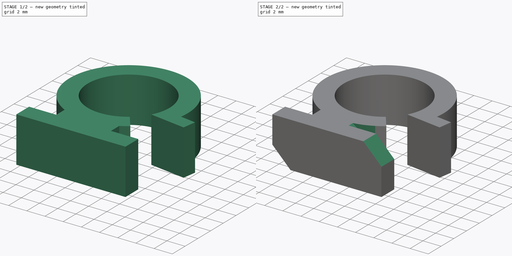
[diagram: build sequence overview — one tinted view per stage of 2, left to right]
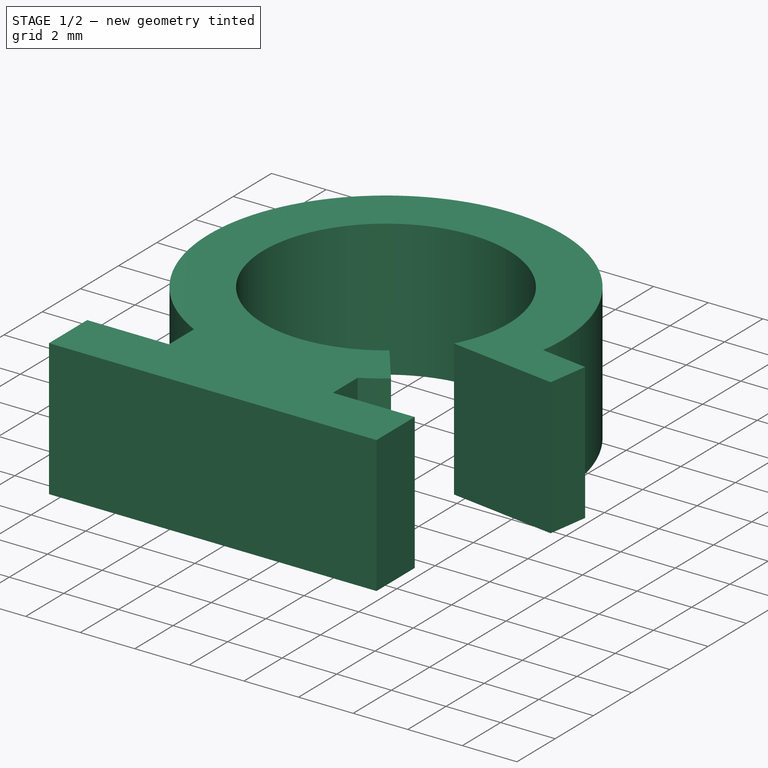
[diagram: stage 1 of 2 — iso view after this stage's code; geometry added in this stage tinted green]
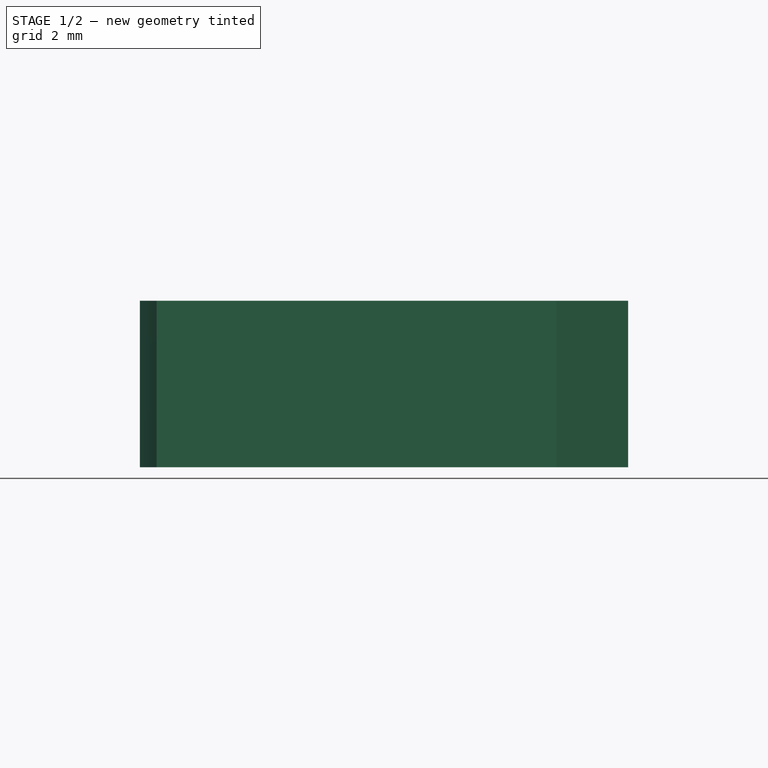
[diagram: stage 1 of 2 — front view after this stage's code; geometry added in this stage tinted green]
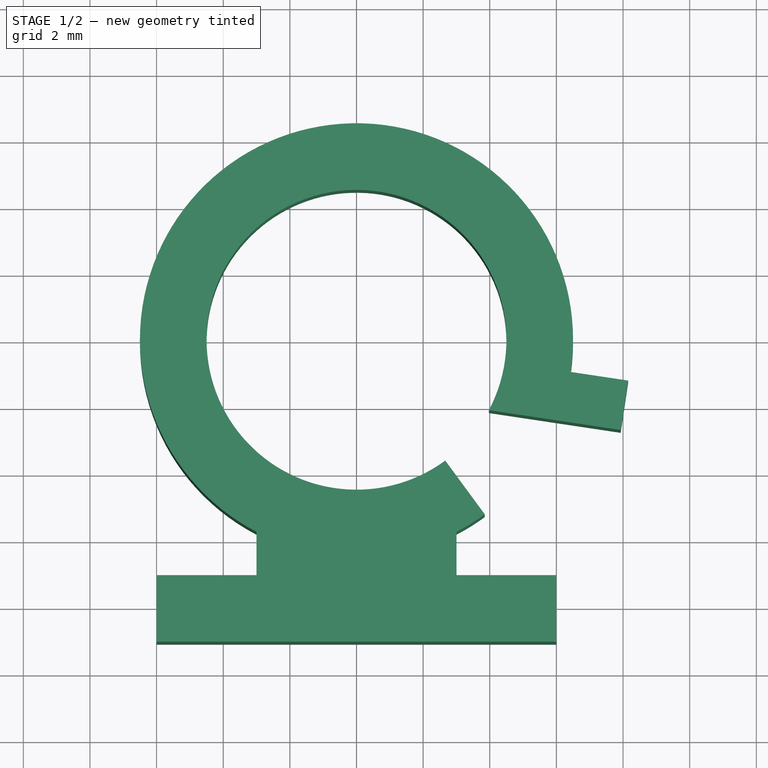
[diagram: stage 1 of 2 — top view after this stage's code; geometry added in this stage tinted green]
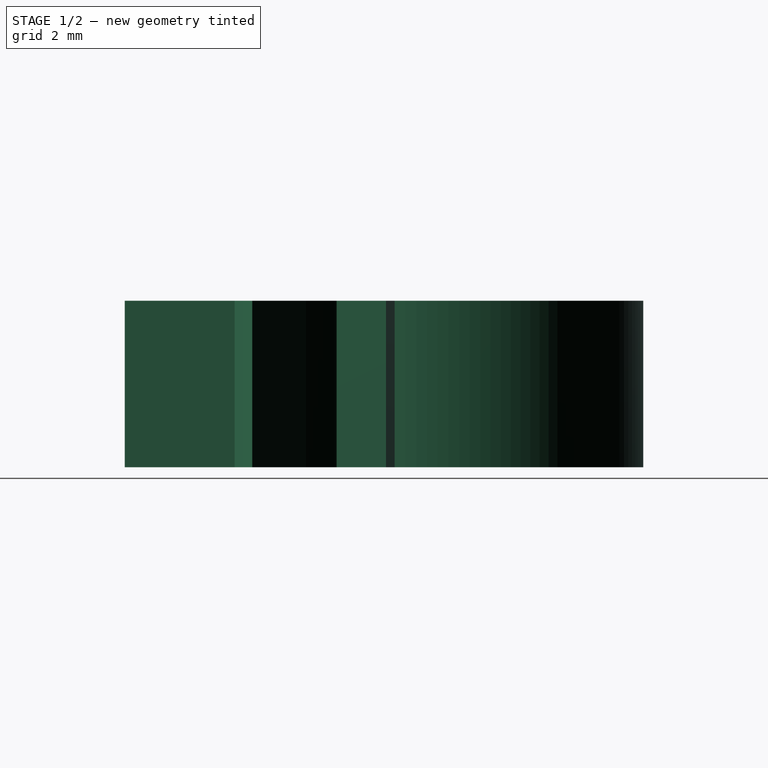
[diagram: stage 1 of 2 — right view after this stage's code; geometry added in this stage tinted green]
FCSTD DOCUMENT
Label: cable-guide
objects: Sketcher::SketchObject×1, PartDesign::Pad×1, PartDesign::Chamfer×1
note: 4 computed .brp shape members not serialized (recipe doc carries the construction recipe); baked Part::Feature solids carry a one-line shape summary decoded from their .brp

FEATURE [Sketcher::SketchObject] Sketch
  sketch-geometry (14):
    g0: ArcOfCircle CenterX=0 CenterY=0 CenterZ=0 NormalX=0 NormalY=0 NormalZ=1 Radius=6.5 StartAngle=6.13414 EndAngle=10.5158
    g1: LineSegment StartX=-3 StartY=-5.76628 StartZ=0 EndX=-3 EndY=-7.06628 EndZ=0
    g2: LineSegment StartX=-3 StartY=-7.06628 StartZ=0 EndX=-6 EndY=-7.06628 EndZ=0
    g3: LineSegment StartX=-6 StartY=-7.06628 StartZ=0 EndX=-6 EndY=-9.06628 EndZ=0
    g4: LineSegment StartX=-6 StartY=-9.06628 StartZ=0 EndX=6 EndY=-9.06628 EndZ=0
    g5: LineSegment StartX=6 StartY=-9.06628 StartZ=0 EndX=6 EndY=-7.06628 EndZ=0
    g6: LineSegment StartX=6 StartY=-7.06628 StartZ=0 EndX=3 EndY=-7.06628 EndZ=0
    g7: LineSegment StartX=3 StartY=-7.06628 StartZ=0 EndX=3 EndY=-5.76628 EndZ=0
    g8: ArcOfCircle CenterX=0 CenterY=0 CenterZ=0 NormalX=0 NormalY=0 NormalZ=1 Radius=4.5 StartAngle=5.7943 EndAngle=11.6293
    g9: ArcOfCircle CenterX=0 CenterY=0 CenterZ=0 NormalX=0 NormalY=0 NormalZ=1 Radius=6.5 StartAngle=5.19212 EndAngle=5.34612
    g10: LineSegment StartX=3.84899 StartY=-5.23787 StartZ=0 EndX=2.66468 EndY=-3.62622 EndZ=0
    g11: LineSegment StartX=3.97286 StartY=-2.11338 StartZ=0 EndX=7.92851 EndY=-2.70736 EndZ=0
    g12: LineSegment StartX=7.92851 StartY=-2.70736 StartZ=0 EndX=8.15126 EndY=-1.22399 EndZ=0
    g13: LineSegment StartX=8.15126 StartY=-1.22399 StartZ=0 EndX=6.42794 EndY=-0.965218 EndZ=0
  constraints (42):
    c: Coincident(g0,g-1)
    c: Coincident(g1,g2)
    c: Coincident(g2,g3)
    c: Coincident(g3,g4)
    c: Coincident(g4,g5)
    c: Coincident(g5,g6)
    c: Coincident(g6,g7)
    c: Coincident(g0,g1)
    c: Vertical(g1)
    c: Vertical(g7)
    c: Distance(g1,g6) = 6
    c: Distance(g7,g6) = 1.3
    c: Horizontal(g2)
    c: Horizontal(g6)
    c: Equal(g1,g7)
    c: Equal(g3,g5)
    c: Vertical(g3)
    c: Vertical(g5)
    c: Distance(g4) = 12
    c: Symmetric(g2,g5,g-2)
    c: DistanceY(g3) = -2
    c: Radius(g0) = 6.5
    c: Radius(g8) = 4.5
    c: Coincident(g8,g-1)
    c: Distance(g2,g1) = 3
    c: Perpendicular(g8,g10)
    c: Coincident(g10,g8)
    c: Coincident(g10,g9)
    c: Coincident(g7,g9)
    c: Distance(g8,g8) = 2
    c: Distance(g7,g9) = 1
    c: Perpendicular(g9,g10)
    c: Equal(g9,g0)
    c: Coincident(g12,g13)
    c: Coincident(g13,g0)
    c: Coincident(g11,g8)
    c: Coincident(g11,g12)
    c: Parallel(g11,g13)
    c: Perpendicular(g12,g11)
    c: Distance(g11) = 4
    c: Perpendicular(g0,g13)
    c: Distance(g12) = 1.5
FEATURE [PartDesign::Pad] Pad
  Length = 5
  Length2 = 100
  Sketch = -> Sketch
  Type = 0
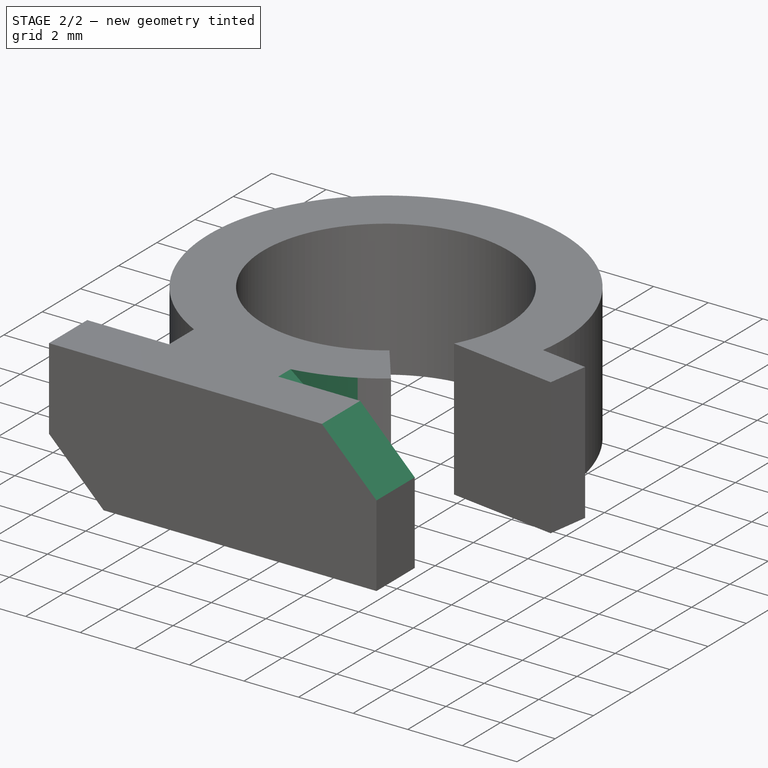
[diagram: stage 2 of 2 — iso view after this stage's code; geometry added in this stage tinted green]
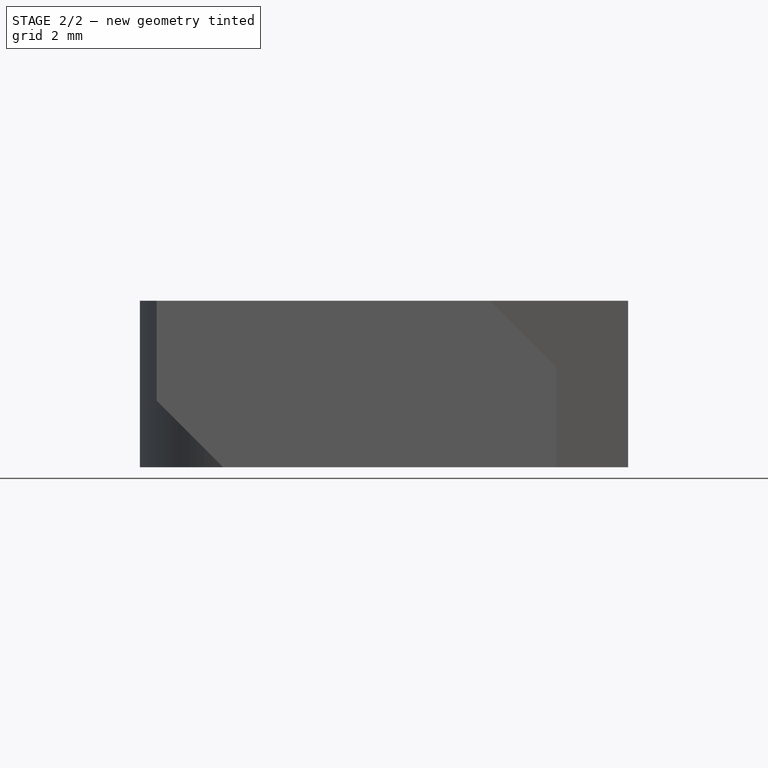
[diagram: stage 2 of 2 — front view after this stage's code; geometry added in this stage tinted green]
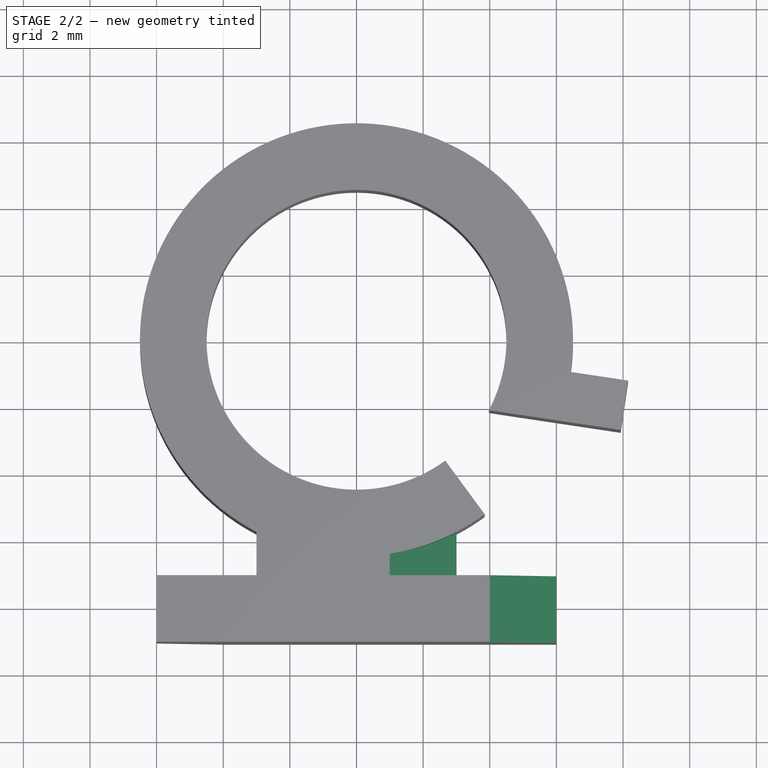
[diagram: stage 2 of 2 — top view after this stage's code; geometry added in this stage tinted green]
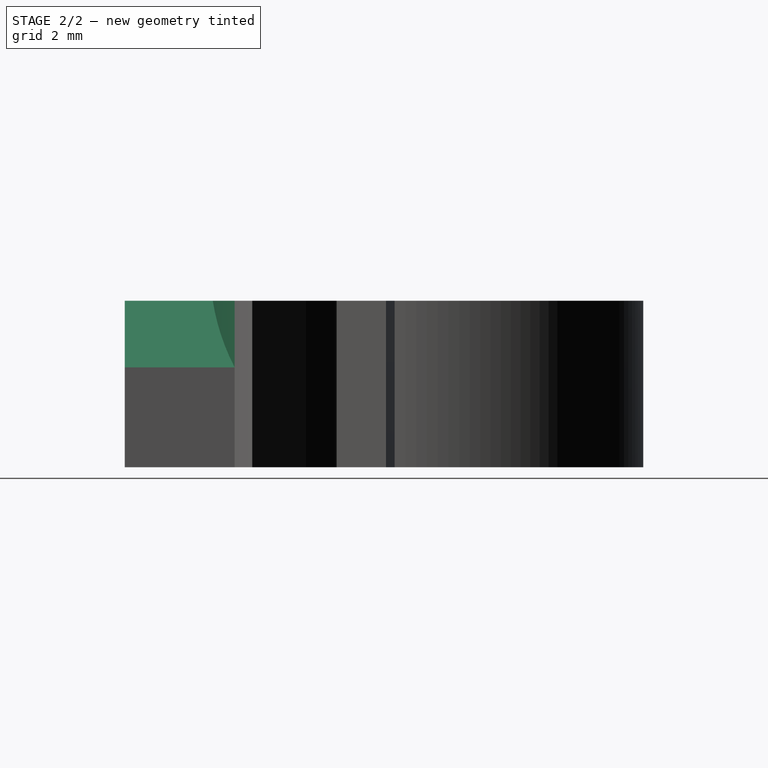
[diagram: stage 2 of 2 — right view after this stage's code; geometry added in this stage tinted green]
FEATURE [PartDesign::Chamfer] Chamfer
  Base = -> Pad [Edge16,Edge10,Edge27,Edge21]
  Size = 2
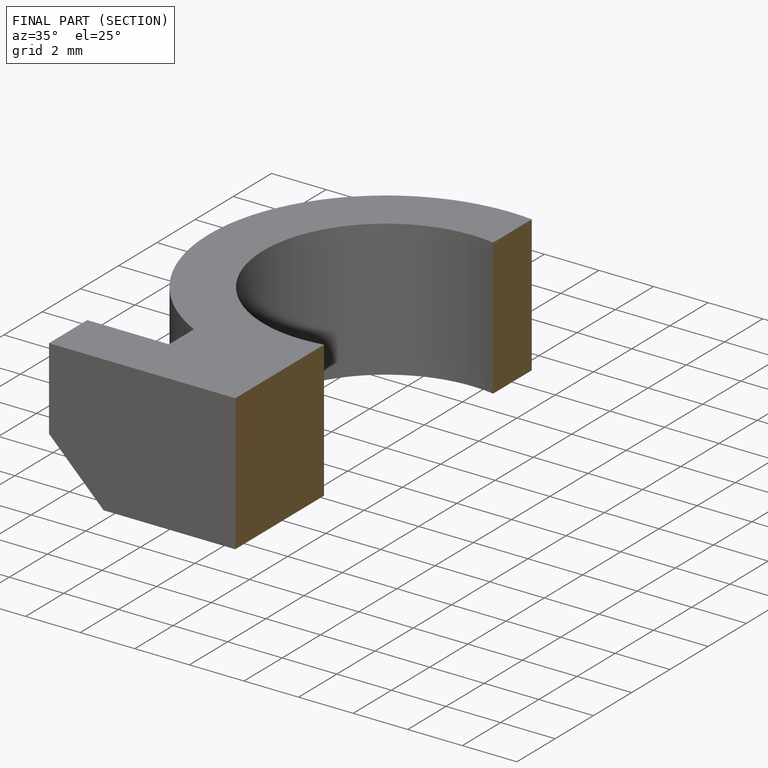
[diagram: finished part — half-section view (interior)]
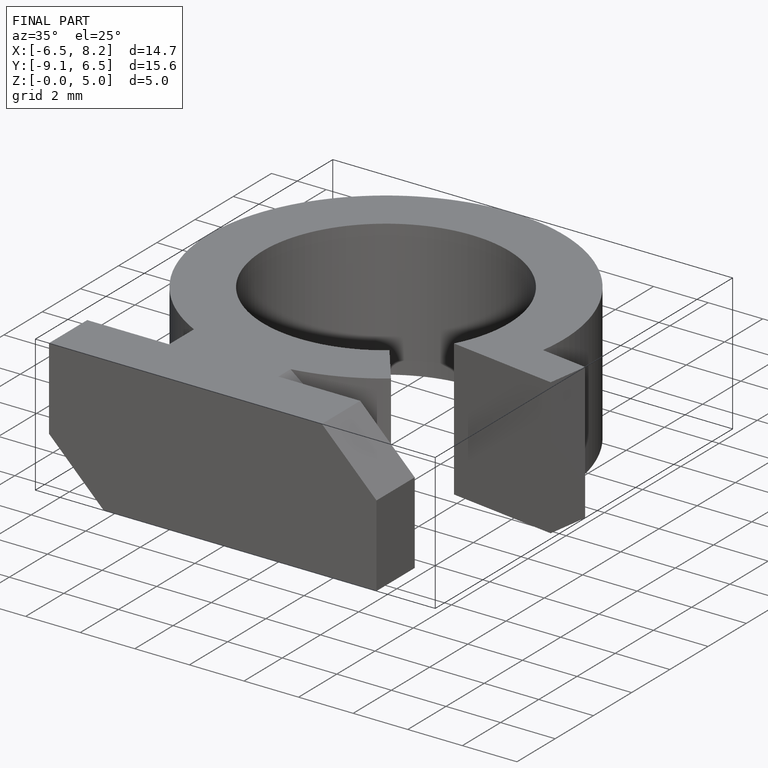
[diagram: finished part — iso view with bounding-box wireframe]
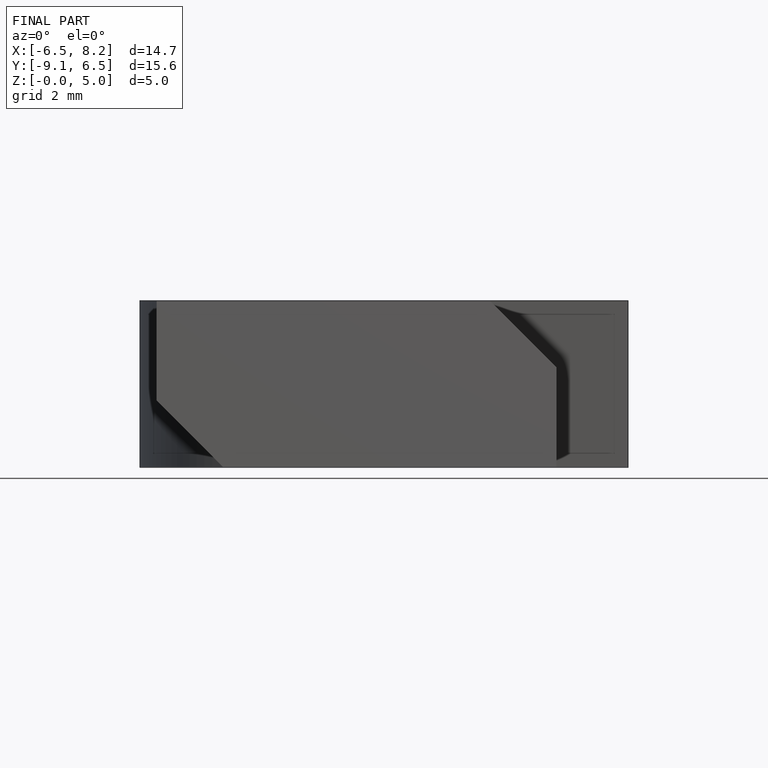
[diagram: finished part — front view with bounding-box wireframe]
